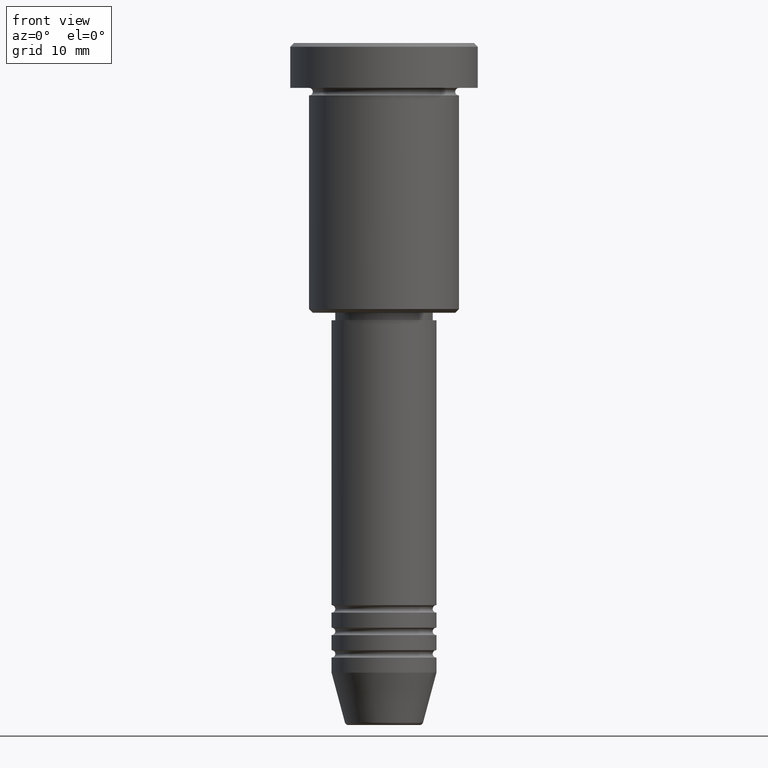
[diagram: clean part render]
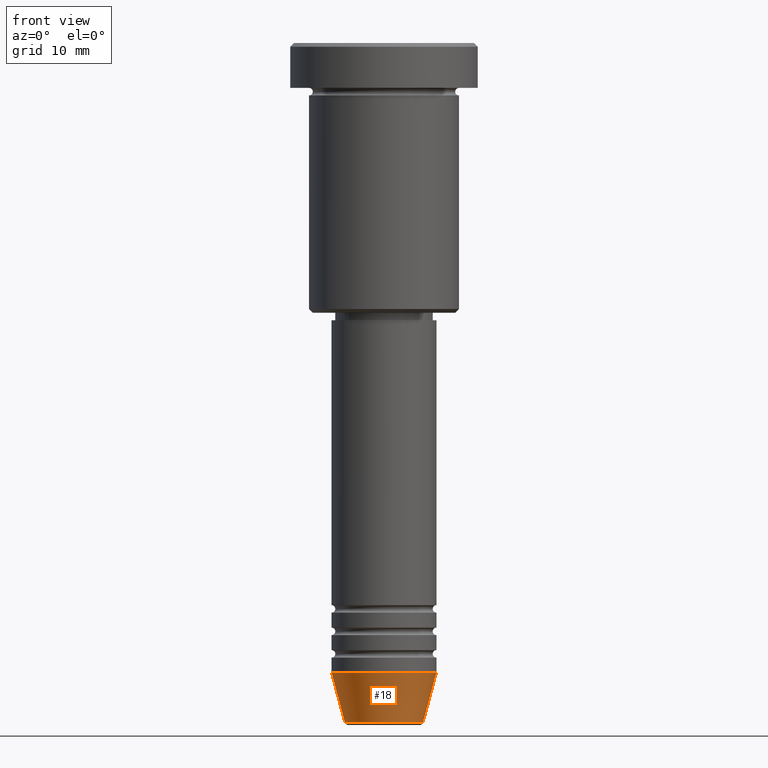
[diagram: same view with one face highlighted and labeled with its STEP entity id]
A machine part, front view. The second image highlights one B-rep face of the part: STEP entity #18.
In plain terms, the highlighted conical surface has half-angle 15 deg.
Its self-contained STEP definition (entity closure, byte-faithful):
#18 = ADVANCED_FACE ( 'NONE', ( #523 ), #828, .T. ) ;
#46 = DIRECTION ( 'NONE',  ( -0.000000000000000000, -0.000000000000000000, 1.000000000000000000 ) ) ;
#65 = DIRECTION ( 'NONE',  ( 1.000000000000000000, 0.000000000000000000, 0.000000000000000000 ) ) ;
#82 = DIRECTION ( 'NONE',  ( 0.2588190451025214056, 0.000000000000000000, 0.9659258262890680902 ) ) ;
#94 = ORIENTED_EDGE ( 'NONE', *, *, #733, .T. ) ;
#98 = ORIENTED_EDGE ( 'NONE', *, *, #115, .F. ) ;
#104 = EDGE_LOOP ( 'NONE', ( #899, #667, #94, #98 ) ) ;
#115 = EDGE_CURVE ( 'NONE', #1078, #887, #789, .T. ) ;
#120 = CARTESIAN_POINT ( 'NONE',  ( -7.000000000000000000, 8.572527594031473190E-16, -83.99999999999998579 ) ) ;
#162 = LINE ( 'NONE', #244, #829 ) ;
#244 = CARTESIAN_POINT ( 'NONE',  ( -7.000000000000000000, 8.572527594031473190E-16, -83.99999999999998579 ) ) ;
#343 = CARTESIAN_POINT ( 'NONE',  ( 0.000000000000000000, 0.000000000000000000, -83.99999999999998579 ) ) ;
#429 = DIRECTION ( 'NONE',  ( 1.000000000000000000, 0.000000000000000000, 0.000000000000000000 ) ) ;
#445 = AXIS2_PLACEMENT_3D ( 'NONE', #517, #776, #65 ) ;
#447 = CIRCLE ( 'NONE', #604, 5.223655072137187716 ) ;
#453 = EDGE_CURVE ( 'NONE', #576, #698, #447, .T. ) ;
#458 = CARTESIAN_POINT ( 'NONE',  ( -5.223655072137187716, 7.484830028987059188E-16, -90.62940952255125637 ) ) ;
#505 = EDGE_CURVE ( 'NONE', #576, #1078, #162, .T. ) ;
#517 = CARTESIAN_POINT ( 'NONE',  ( 0.000000000000000000, 0.000000000000000000, -83.99999999999998579 ) ) ;
#523 = FACE_OUTER_BOUND ( 'NONE', #104, .T. ) ;
#576 = VERTEX_POINT ( 'NONE', #458 ) ;
#604 = AXIS2_PLACEMENT_3D ( 'NONE', #617, #975, #804 ) ;
#617 = CARTESIAN_POINT ( 'NONE',  ( 0.000000000000000000, 0.000000000000000000, -90.62940952255125637 ) ) ;
#625 = LINE ( 'NONE', #882, #629 ) ;
#629 = VECTOR ( 'NONE', #82, 1000.000000000000000 ) ;
#667 = ORIENTED_EDGE ( 'NONE', *, *, #453, .T. ) ;
#698 = VERTEX_POINT ( 'NONE', #960 ) ;
#733 = EDGE_CURVE ( 'NONE', #698, #887, #625, .T. ) ;
#776 = DIRECTION ( 'NONE',  ( -0.000000000000000000, -0.000000000000000000, 1.000000000000000000 ) ) ;
#789 = CIRCLE ( 'NONE', #948, 7.000000000000000000 ) ;
#804 = DIRECTION ( 'NONE',  ( 1.000000000000000000, 0.000000000000000000, 0.000000000000000000 ) ) ;
#824 = CARTESIAN_POINT ( 'NONE',  ( 7.000000000000000000, 0.000000000000000000, -83.99999999999998579 ) ) ;
#828 = CONICAL_SURFACE ( 'NONE', #445, 7.000000000000000000, 0.2617993877991501295 ) ;
#829 = VECTOR ( 'NONE', #908, 1000.000000000000000 ) ;
#882 = CARTESIAN_POINT ( 'NONE',  ( 7.000000000000000000, 0.000000000000000000, -83.99999999999998579 ) ) ;
#887 = VERTEX_POINT ( 'NONE', #824 ) ;
#899 = ORIENTED_EDGE ( 'NONE', *, *, #505, .F. ) ;
#908 = DIRECTION ( 'NONE',  ( -0.2588190451025214056, 3.169619151431772953E-17, 0.9659258262890680902 ) ) ;
#948 = AXIS2_PLACEMENT_3D ( 'NONE', #343, #46, #429 ) ;
#960 = CARTESIAN_POINT ( 'NONE',  ( 5.223655072137187716, 0.000000000000000000, -90.62940952255125637 ) ) ;
#975 = DIRECTION ( 'NONE',  ( -0.000000000000000000, -0.000000000000000000, 1.000000000000000000 ) ) ;
#1078 = VERTEX_POINT ( 'NONE', #120 ) ;